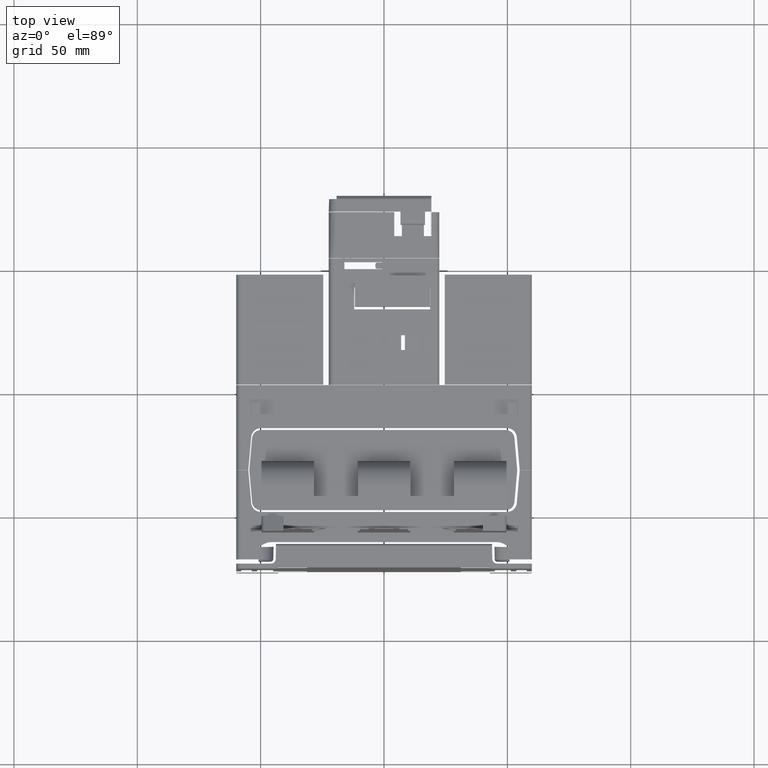
[diagram: clean part render]
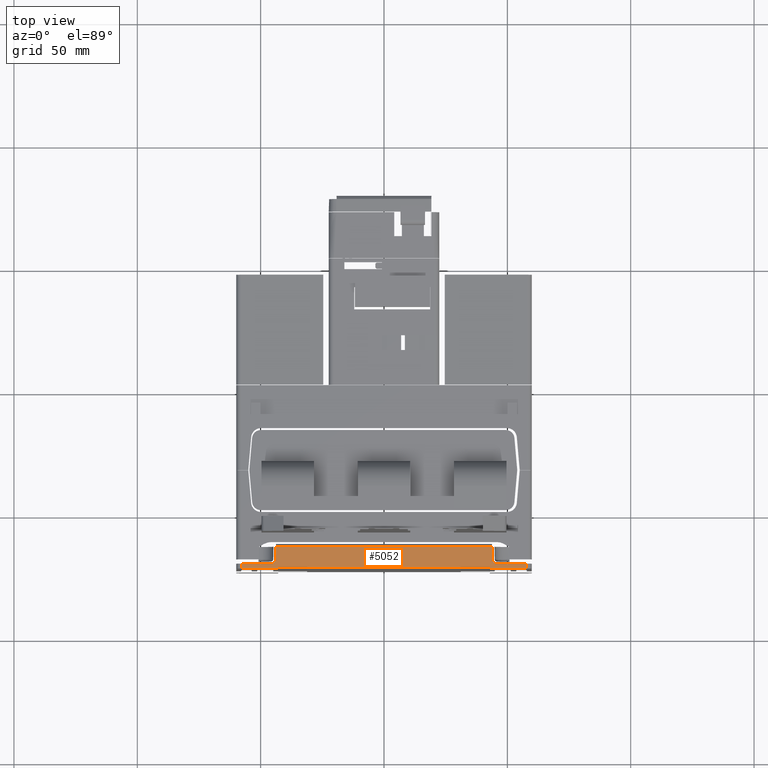
[diagram: same view with one face highlighted and labeled with its STEP entity id]
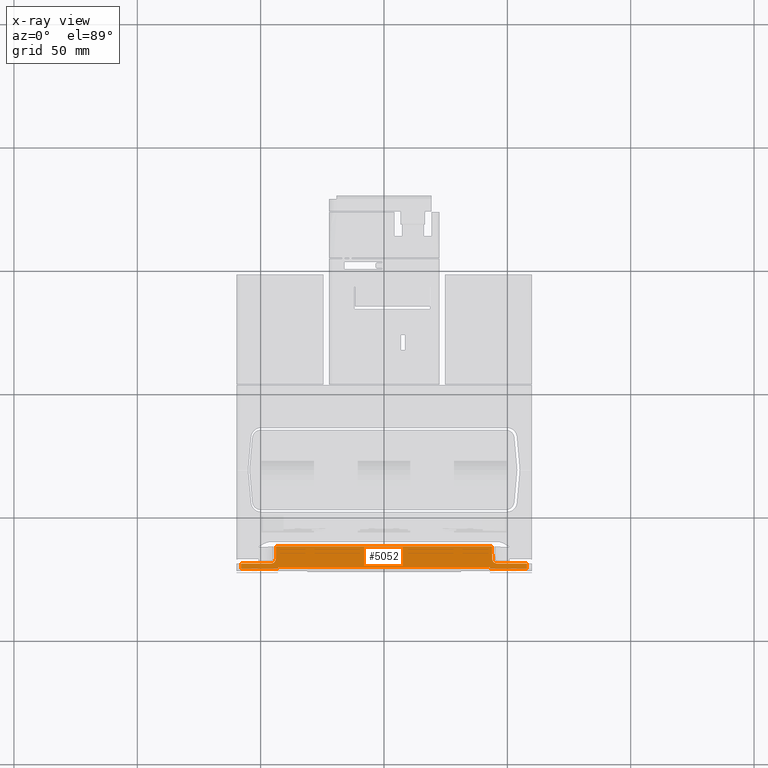
[diagram: x-ray of the same camera — body ghosted, the highlighted face saturated]
A machine part, top view. The second image highlights one B-rep face of the part: STEP entity #5052.
The next image is the same camera in x-ray: the body ghosted, the highlighted face saturated — about 0% of this face is hidden behind the body in this view.
In plain terms, the highlighted planar face has unit normal (0, 0.0175, 0.9998).
Its self-contained STEP definition (entity closure, byte-faithful):
#1908=CARTESIAN_POINT('',(-2.279527559055E0,-2.888582677165E0,
2.156521653543E0));
#1916=DIRECTION('',(-1.E0,0.E0,0.E0));
#1917=VECTOR('',#1916,5.907727988585E-1);
#1918=CARTESIAN_POINT('',(-1.688754760197E0,-2.888582677165E0,
2.156521653543E0));
#1919=LINE('',#1918,#1917);
#1960=DIRECTION('',(-1.E0,0.E0,0.E0));
#1961=VECTOR('',#1960,5.907727988585E-1);
#1962=CARTESIAN_POINT('',(2.279527559055E0,-2.888582677165E0,2.156521653543E0));
#1963=LINE('',#1962,#1961);
#1970=CARTESIAN_POINT('',(2.279527559055E0,-2.888582677165E0,2.156521653543E0));
#2700=DIRECTION('',(-1.E0,0.E0,0.E0));
#2701=VECTOR('',#2700,3.376822313113E0);
#2702=CARTESIAN_POINT('',(1.688411156556E0,-2.868897637795E0,2.156178049903E0));
#2703=LINE('',#2702,#2701);
#2704=DIRECTION('',(-1.744974916071E-2,-9.996954598819E-1,1.744974916067E-2));
#2705=VECTOR('',#2704,1.969103608053E-2);
#2706=CARTESIAN_POINT('',(-1.688411156556E0,-2.868897637795E0,
2.156178049903E0));
#2707=LINE('',#2706,#2705);
#2708=DIRECTION('',(0.E0,9.998476951564E-1,-1.745240643729E-2));
#2709=VECTOR('',#2708,7.943935909512E-2);
#2710=CARTESIAN_POINT('',(-2.279527559055E0,-2.888582677165E0,
2.156521653543E0));
#2711=LINE('',#2710,#2709);
#2712=DIRECTION('',(1.E0,0.E0,0.E0));
#2713=VECTOR('',#2712,4.731221552419E-1);
#2714=CARTESIAN_POINT('',(-2.279527559055E0,-2.809155417069E0,
2.155135245561E0));
#2715=LINE('',#2714,#2713);
#2716=CARTESIAN_POINT('',(-1.806405403813E0,-2.809155417069E0,
2.155135245561E0));
#2717=CARTESIAN_POINT('',(-1.798024344131E0,-2.809158436467E0,
2.155137072365E0));
#2718=CARTESIAN_POINT('',(-1.782116826092E0,-2.806630138834E0,
2.155090355845E0));
#2719=CARTESIAN_POINT('',(-1.759713989239E0,-2.795422077757E0,
2.154895705954E0));
#2720=CARTESIAN_POINT('',(-1.742080857370E0,-2.778055978746E0,
2.154592506778E0));
#2721=CARTESIAN_POINT('',(-1.730541465034E0,-2.755758023158E0,
2.154202598135E0));
#2722=CARTESIAN_POINT('',(-1.727819258823E0,-2.740055311432E0,
2.153930411824E0));
#2723=CARTESIAN_POINT('',(-1.727677239087E0,-2.731789464820E0,
2.153784817842E0));
#2725=DIRECTION('',(1.744974916068E-2,9.996954598819E-1,-1.744974916068E-2));
#2726=VECTOR('',#2725,1.982849846647E-1);
#2727=CARTESIAN_POINT('',(-1.727677239087E0,-2.731789464820E0,
2.153784817842E0));
#2728=LINE('',#2727,#2726);
#2729=DIRECTION('',(-1.E0,0.E0,0.E0));
#2730=VECTOR('',#2729,3.448434431684E0);
#2731=CARTESIAN_POINT('',(1.724217215842E0,-2.533564865888E0,2.150324794597E0));
#2732=LINE('',#2731,#2730);
#2733=DIRECTION('',(1.744974916068E-2,-9.996954598819E-1,1.744974916068E-2));
#2734=VECTOR('',#2733,1.982849846647E-1);
#2735=CARTESIAN_POINT('',(1.724217215842E0,-2.533564865888E0,2.150324794597E0));
#2736=LINE('',#2735,#2734);
#2737=CARTESIAN_POINT('',(1.727677239087E0,-2.731789464820E0,2.153784817842E0));
#2738=CARTESIAN_POINT('',(1.727819072680E0,-2.740055315364E0,2.153930531468E0));
#2739=CARTESIAN_POINT('',(1.730541200223E0,-2.755758025168E0,2.154202541884E0));
#2740=CARTESIAN_POINT('',(1.742082960505E0,-2.778058932784E0,2.154592575980E0));
#2741=CARTESIAN_POINT('',(1.759714486866E0,-2.795421922360E0,2.154895688972E0));
#2742=CARTESIAN_POINT('',(1.782114676290E0,-2.806629417355E0,2.155090382693E0));
#2743=CARTESIAN_POINT('',(1.798023339915E0,-2.809158307072E0,2.155136987590E0));
#2744=CARTESIAN_POINT('',(1.806405403839E0,-2.809155417069E0,2.155135245561E0));
#2746=DIRECTION('',(1.E0,0.E0,0.E0));
#2747=VECTOR('',#2746,4.731221552164E-1);
#2748=CARTESIAN_POINT('',(1.806405403839E0,-2.809155417069E0,2.155135245561E0));
#2749=LINE('',#2748,#2747);
#2750=DIRECTION('',(0.E0,9.998476951564E-1,-1.745240643729E-2));
#2751=VECTOR('',#2750,7.943935909512E-2);
#2752=CARTESIAN_POINT('',(2.279527559055E0,-2.888582677165E0,2.156521653543E0));
#2753=LINE('',#2752,#2751);
#2754=DIRECTION('',(-1.744974916070E-2,9.996954598819E-1,-1.744974916067E-2));
#2755=VECTOR('',#2754,1.969103608053E-2);
#2756=CARTESIAN_POINT('',(1.688754760197E0,-2.888582677165E0,2.156521653543E0));
#2757=LINE('',#2756,#2755);
#2826=CARTESIAN_POINT('',(2.279527559055E0,-2.809155417069E0,2.155135245561E0));
#3914=VERTEX_POINT('',#1908);
#3917=VERTEX_POINT('',#1970);
#3991=VERTEX_POINT('',#2826);
#3992=CARTESIAN_POINT('',(1.806405403839E0,-2.809155417069E0,2.155135245561E0));
#3993=VERTEX_POINT('',#3992);
#4002=CARTESIAN_POINT('',(-2.279527559055E0,-2.809155417069E0,
2.155135245561E0));
#4003=CARTESIAN_POINT('',(-1.806405403813E0,-2.809155417069E0,
2.155135245561E0));
#4004=VERTEX_POINT('',#4002);
#4005=VERTEX_POINT('',#4003);
#4055=CARTESIAN_POINT('',(1.724217215842E0,-2.533564865888E0,2.150324794597E0));
#4056=CARTESIAN_POINT('',(-1.724217215842E0,-2.533564865888E0,
2.150324794597E0));
#4057=VERTEX_POINT('',#4055);
#4058=VERTEX_POINT('',#4056);
#4065=VERTEX_POINT('',#2737);
#4066=VERTEX_POINT('',#2723);
#4195=CARTESIAN_POINT('',(1.688411156556E0,-2.868897637795E0,2.156178049903E0));
#4196=CARTESIAN_POINT('',(-1.688411156556E0,-2.868897637795E0,
2.156178049903E0));
#4197=VERTEX_POINT('',#4195);
#4198=VERTEX_POINT('',#4196);
#4199=CARTESIAN_POINT('',(-1.688754760197E0,-2.888582677165E0,
2.156521653543E0));
#4200=VERTEX_POINT('',#4199);
#4201=CARTESIAN_POINT('',(1.688754760197E0,-2.888582677165E0,2.156521653543E0));
#4202=VERTEX_POINT('',#4201);
#5019=CARTESIAN_POINT('',(2.440970862869E0,-2.888582677165E0,2.156521653543E0));
#5020=DIRECTION('',(0.E0,1.745240643728E-2,9.998476951564E-1));
#5021=DIRECTION('',(-1.E0,0.E0,0.E0));
#5022=AXIS2_PLACEMENT_3D('',#5019,#5020,#5021);
#5023=PLANE('',#5022);
#5025=ORIENTED_EDGE('',*,*,#5024,.T.);
#5027=ORIENTED_EDGE('',*,*,#5026,.T.);
#5028=ORIENTED_EDGE('',*,*,#4464,.T.);
#5030=ORIENTED_EDGE('',*,*,#5029,.T.);
#5032=ORIENTED_EDGE('',*,*,#5031,.T.);
#5034=ORIENTED_EDGE('',*,*,#5033,.T.);
#5036=ORIENTED_EDGE('',*,*,#5035,.T.);
#5038=ORIENTED_EDGE('',*,*,#5037,.F.);
#5040=ORIENTED_EDGE('',*,*,#5039,.T.);
#5042=ORIENTED_EDGE('',*,*,#5041,.T.);
#5044=ORIENTED_EDGE('',*,*,#5043,.T.);
#5046=ORIENTED_EDGE('',*,*,#5045,.F.);
#5047=ORIENTED_EDGE('',*,*,#4500,.T.);
#5049=ORIENTED_EDGE('',*,*,#5048,.T.);
#5050=EDGE_LOOP('',(#5025,#5027,#5028,#5030,#5032,#5034,#5036,#5038,#5040,#5042,
#5044,#5046,#5047,#5049));
#5051=FACE_OUTER_BOUND('',#5050,.F.);
#5052=ADVANCED_FACE('',(#5051),#5023,.T.);
#2724=B_SPLINE_CURVE_WITH_KNOTS('',3,(#2716,#2717,#2718,#2719,#2720,#2721,#2722,
#2723),.UNSPECIFIED.,.F.,.F.,(4,1,1,1,1,4),(0.E0,2.E-1,4.E-1,6.E-1,8.E-1,1.E0),
.UNSPECIFIED.);
#2745=B_SPLINE_CURVE_WITH_KNOTS('',3,(#2737,#2738,#2739,#2740,#2741,#2742,#2743,
#2744),.UNSPECIFIED.,.F.,.F.,(4,1,1,1,1,4),(0.E0,2.E-1,4.E-1,6.E-1,8.E-1,1.E0),
.UNSPECIFIED.);
#4464=EDGE_CURVE('',#4200,#3914,#1919,.T.);
#4500=EDGE_CURVE('',#3917,#4202,#1963,.T.);
#5024=EDGE_CURVE('',#4197,#4198,#2703,.T.);
#5026=EDGE_CURVE('',#4198,#4200,#2707,.T.);
#5029=EDGE_CURVE('',#3914,#4004,#2711,.T.);
#5031=EDGE_CURVE('',#4004,#4005,#2715,.T.);
#5033=EDGE_CURVE('',#4005,#4066,#2724,.T.);
#5035=EDGE_CURVE('',#4066,#4058,#2728,.T.);
#5037=EDGE_CURVE('',#4057,#4058,#2732,.T.);
#5039=EDGE_CURVE('',#4057,#4065,#2736,.T.);
#5041=EDGE_CURVE('',#4065,#3993,#2745,.T.);
#5043=EDGE_CURVE('',#3993,#3991,#2749,.T.);
#5045=EDGE_CURVE('',#3917,#3991,#2753,.T.);
#5048=EDGE_CURVE('',#4202,#4197,#2757,.T.);